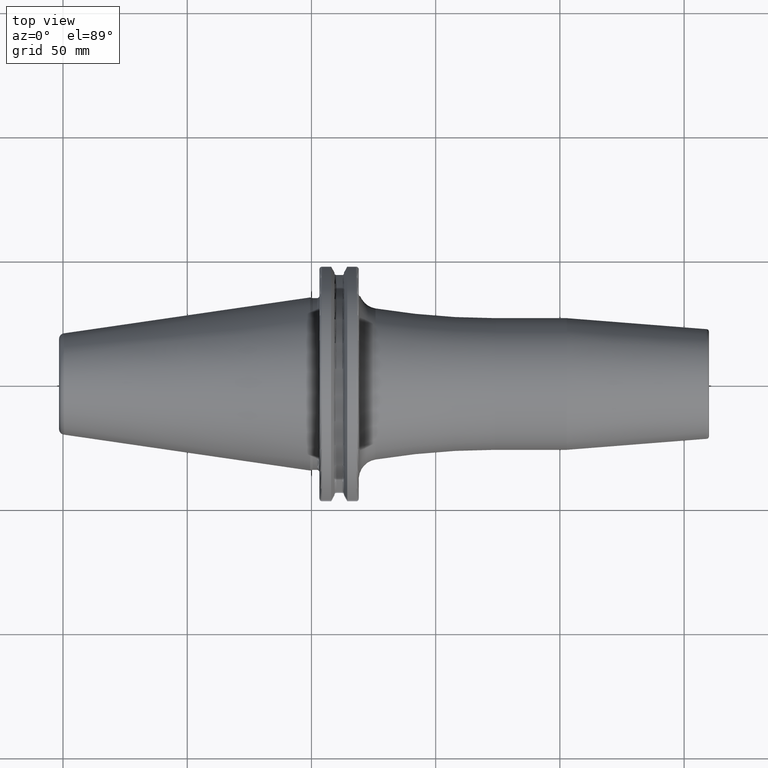
[diagram: clean part render]
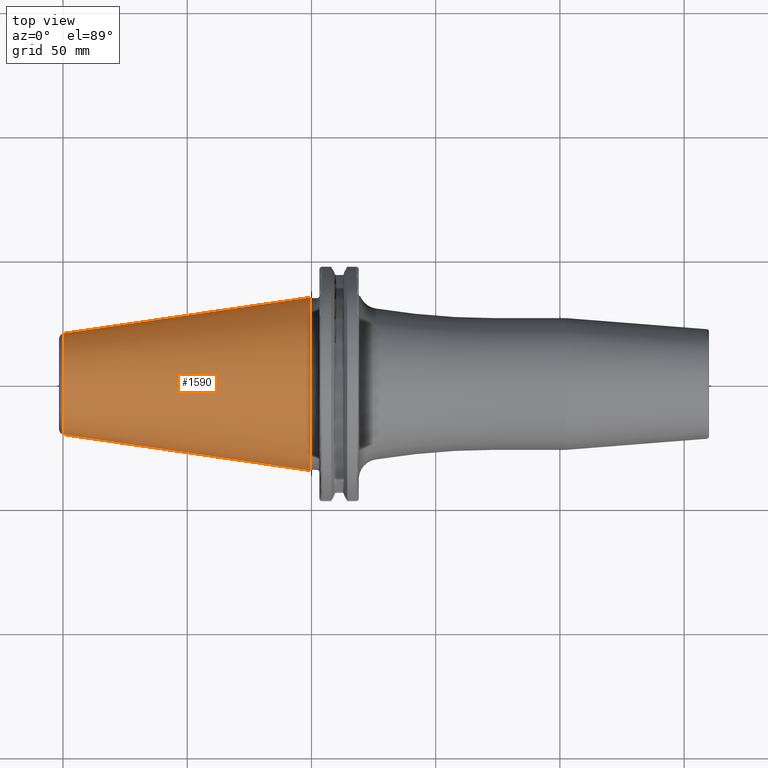
[diagram: same view with one face highlighted and labeled with its STEP entity id]
A machine part, top view. The second image highlights one B-rep face of the part: STEP entity #1590.
In plain terms, the highlighted conical surface has half-angle 8.298 deg.
Its self-contained STEP definition (entity closure, byte-faithful):
#37=CARTESIAN_POINT('',(-9.967471700563E1,0.E0,0.E0));
#38=DIRECTION('',(1.E0,0.E0,0.E0));
#39=DIRECTION('',(0.E0,1.E0,0.E0));
#40=AXIS2_PLACEMENT_3D('',#37,#38,#39);
#42=CARTESIAN_POINT('',(-4.896823332305E-1,0.E0,0.E0));
#43=DIRECTION('',(1.E0,0.E0,0.E0));
#44=DIRECTION('',(0.E0,1.E0,0.E0));
#45=AXIS2_PLACEMENT_3D('',#42,#43,#44);
#47=DIRECTION('',(-9.895312636440E-1,-1.443186691705E-1,0.E0));
#48=VECTOR('',#47,1.002343617797E2);
#49=CARTESIAN_POINT('',(-4.896823332305E-1,3.485358204157E1,0.E0));
#50=LINE('',#49,#48);
#51=DIRECTION('',(-9.895312636440E-1,1.443186691705E-1,0.E0));
#52=VECTOR('',#51,1.002343617797E2);
#53=CARTESIAN_POINT('',(-4.896823332305E-1,-3.485358204157E1,0.E0));
#54=LINE('',#53,#52);
#1269=CARTESIAN_POINT('',(-9.967471700563E1,2.038789234437E1,0.E0));
#1271=VERTEX_POINT('',#1269);
#1273=CARTESIAN_POINT('',(-9.967471700563E1,-2.038789234437E1,0.E0));
#1275=VERTEX_POINT('',#1273);
#1337=CARTESIAN_POINT('',(-4.896823332305E-1,3.485358204157E1,0.E0));
#1338=VERTEX_POINT('',#1337);
#1339=CARTESIAN_POINT('',(-4.896823332305E-1,-3.485358204157E1,0.E0));
#1340=VERTEX_POINT('',#1339);
#1576=CARTESIAN_POINT('',(-5.008219966943E1,0.E0,0.E0));
#1577=DIRECTION('',(1.E0,0.E0,0.E0));
#1578=DIRECTION('',(0.E0,-1.E0,0.E0));
#1579=AXIS2_PLACEMENT_3D('',#1576,#1577,#1578);
#1580=CONICAL_SURFACE('',#1579,2.762073719297E1,8.297826828206E0);
#1582=ORIENTED_EDGE('',*,*,#1581,.F.);
#1584=ORIENTED_EDGE('',*,*,#1583,.T.);
#1586=ORIENTED_EDGE('',*,*,#1585,.T.);
#1587=ORIENTED_EDGE('',*,*,#1569,.F.);
#1588=EDGE_LOOP('',(#1582,#1584,#1586,#1587));
#1589=FACE_OUTER_BOUND('',#1588,.F.);
#1590=ADVANCED_FACE('',(#1589),#1580,.T.);
#41=CIRCLE('',#40,2.038789234437E1);
#46=CIRCLE('',#45,3.485358204157E1);
#1569=EDGE_CURVE('',#1271,#1275,#41,.T.);
#1581=EDGE_CURVE('',#1338,#1271,#50,.T.);
#1583=EDGE_CURVE('',#1338,#1340,#46,.T.);
#1585=EDGE_CURVE('',#1340,#1275,#54,.T.);